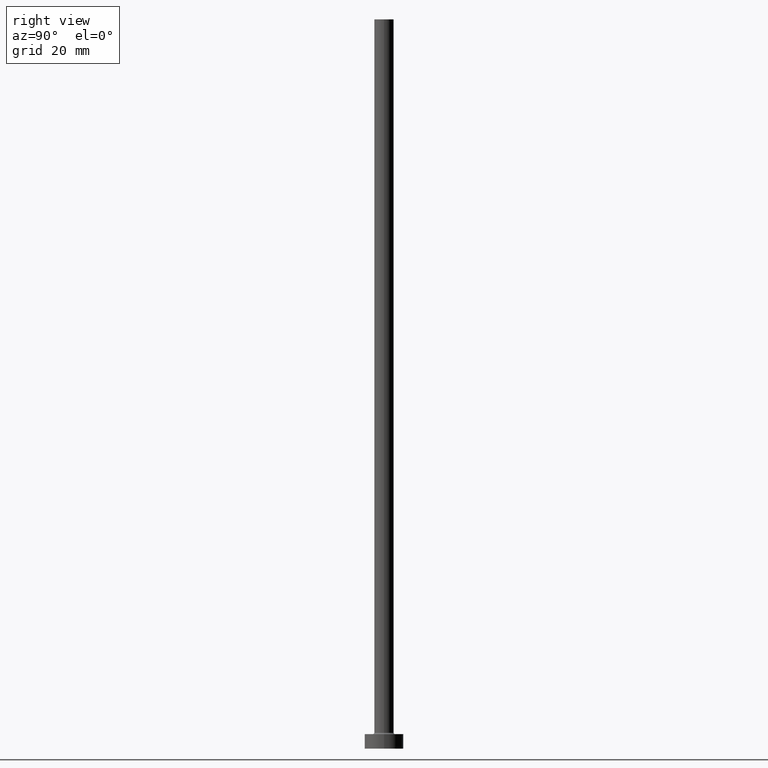
[diagram: clean part render]
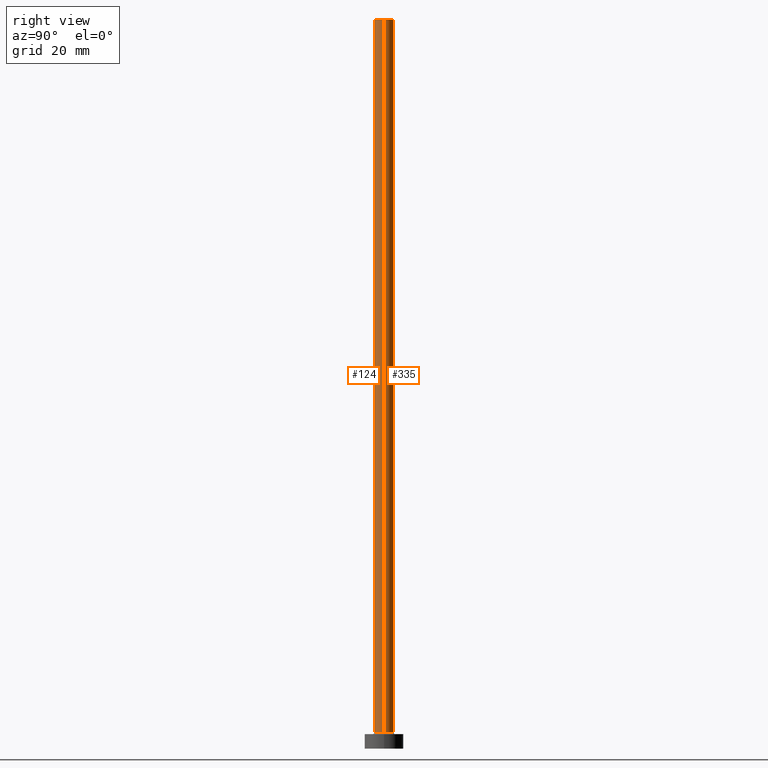
[diagram: same view with one multi-face feature highlighted, each face labeled with its STEP entity id]
A machine part, right view. The highlighted faces form ONE feature: a constant-radius fillet chain: 2 tangent blend faces with common blend radius 2 mm. The faces share edges in the B-rep.
Their STEP definitions:
[1] entity #335 (Cylinder):
#34 = VECTOR ( 'NONE', #448, 1000.000000000000000 ) ;
#41 = LINE ( 'NONE', #331, #34 ) ;
#42 = EDGE_CURVE ( 'NONE', #284, #338, #85, .T. ) ;
#58 = DIRECTION ( 'NONE',  ( -0.000000000000000000, -0.000000000000000000, -1.000000000000000000 ) ) ;
#66 = ORIENTED_EDGE ( 'NONE', *, *, #42, .T. ) ;
#80 = EDGE_CURVE ( 'NONE', #393, #391, #98, .T. ) ;
#85 = CIRCLE ( 'NONE', #162, 2.000000000000000000 ) ;
#86 = AXIS2_PLACEMENT_3D ( 'NONE', #181, #58, #258 ) ;
#88 = DIRECTION ( 'NONE',  ( 0.000000000000000000, 0.000000000000000000, 1.000000000000000000 ) ) ;
#98 = CIRCLE ( 'NONE', #294, 2.000000000000000000 ) ;
#99 = DIRECTION ( 'NONE',  ( 1.000000000000000000, 0.000000000000000000, 0.000000000000000000 ) ) ;
#139 = ORIENTED_EDGE ( 'NONE', *, *, #80, .F. ) ;
#161 = CARTESIAN_POINT ( 'NONE',  ( 0.000000000000000000, 0.000000000000000000, 150.0000000000000000 ) ) ;
#162 = AXIS2_PLACEMENT_3D ( 'NONE', #347, #88, #99 ) ;
#181 = CARTESIAN_POINT ( 'NONE',  ( 0.000000000000000000, 0.000000000000000000, 150.0000000000000000 ) ) ;
#205 = EDGE_CURVE ( 'NONE', #393, #284, #41, .T. ) ;
#236 = CARTESIAN_POINT ( 'NONE',  ( -2.000000000000000000, 0.000000000000000000, 150.0000000000000000 ) ) ;
#242 = LINE ( 'NONE', #415, #392 ) ;
#249 = ORIENTED_EDGE ( 'NONE', *, *, #405, .F. ) ;
#258 = DIRECTION ( 'NONE',  ( -1.000000000000000000, 0.000000000000000000, 0.000000000000000000 ) ) ;
#261 = FACE_OUTER_BOUND ( 'NONE', #361, .T. ) ;
#284 = VERTEX_POINT ( 'NONE', #388 ) ;
#292 = ORIENTED_EDGE ( 'NONE', *, *, #205, .T. ) ;
#294 = AXIS2_PLACEMENT_3D ( 'NONE', #161, #424, #379 ) ;
#331 = CARTESIAN_POINT ( 'NONE',  ( 2.000000000000000000, 2.449293598294706414E-16, 150.0000000000000000 ) ) ;
#335 = ADVANCED_FACE ( 'NONE', ( #261 ), #443, .T. ) ;
#338 = VERTEX_POINT ( 'NONE', #385 ) ;
#346 = DIRECTION ( 'NONE',  ( -0.000000000000000000, -0.000000000000000000, -1.000000000000000000 ) ) ;
#347 = CARTESIAN_POINT ( 'NONE',  ( 0.000000000000000000, 0.000000000000000000, 3.299999999999997158 ) ) ;
#361 = EDGE_LOOP ( 'NONE', ( #139, #292, #66, #249 ) ) ;
#379 = DIRECTION ( 'NONE',  ( 1.000000000000000000, 0.000000000000000000, 0.000000000000000000 ) ) ;
#385 = CARTESIAN_POINT ( 'NONE',  ( -2.000000000000000000, 0.000000000000000000, 3.299999999999997158 ) ) ;
#388 = CARTESIAN_POINT ( 'NONE',  ( 2.000000000000000000, 2.449293598294706414E-16, 3.299999999999997158 ) ) ;
#391 = VERTEX_POINT ( 'NONE', #236 ) ;
#392 = VECTOR ( 'NONE', #346, 1000.000000000000000 ) ;
#393 = VERTEX_POINT ( 'NONE', #445 ) ;
#405 = EDGE_CURVE ( 'NONE', #391, #338, #242, .T. ) ;
#415 = CARTESIAN_POINT ( 'NONE',  ( -2.000000000000000000, 0.000000000000000000, 150.0000000000000000 ) ) ;
#424 = DIRECTION ( 'NONE',  ( 0.000000000000000000, 0.000000000000000000, 1.000000000000000000 ) ) ;
#443 = CYLINDRICAL_SURFACE ( 'NONE', #86, 2.000000000000000000 ) ;
#445 = CARTESIAN_POINT ( 'NONE',  ( 2.000000000000000000, 2.449293598294706414E-16, 150.0000000000000000 ) ) ;
#448 = DIRECTION ( 'NONE',  ( -0.000000000000000000, -0.000000000000000000, -1.000000000000000000 ) ) ;
[2] entity #124 (Cylinder):
#5 = DIRECTION ( 'NONE',  ( 0.000000000000000000, 0.000000000000000000, 1.000000000000000000 ) ) ;
#6 = ORIENTED_EDGE ( 'NONE', *, *, #405, .T. ) ;
#34 = VECTOR ( 'NONE', #448, 1000.000000000000000 ) ;
#36 = ORIENTED_EDGE ( 'NONE', *, *, #205, .F. ) ;
#41 = LINE ( 'NONE', #331, #34 ) ;
#57 = DIRECTION ( 'NONE',  ( 1.000000000000000000, 0.000000000000000000, 0.000000000000000000 ) ) ;
#63 = EDGE_LOOP ( 'NONE', ( #36, #152, #6, #172 ) ) ;
#65 = DIRECTION ( 'NONE',  ( 1.000000000000000000, 0.000000000000000000, 0.000000000000000000 ) ) ;
#105 = AXIS2_PLACEMENT_3D ( 'NONE', #402, #416, #370 ) ;
#124 = ADVANCED_FACE ( 'NONE', ( #136 ), #283, .T. ) ;
#127 = AXIS2_PLACEMENT_3D ( 'NONE', #146, #5, #65 ) ;
#136 = FACE_OUTER_BOUND ( 'NONE', #63, .T. ) ;
#146 = CARTESIAN_POINT ( 'NONE',  ( 0.000000000000000000, 0.000000000000000000, 3.299999999999997158 ) ) ;
#151 = CIRCLE ( 'NONE', #256, 2.000000000000000000 ) ;
#152 = ORIENTED_EDGE ( 'NONE', *, *, #367, .F. ) ;
#172 = ORIENTED_EDGE ( 'NONE', *, *, #325, .T. ) ;
#205 = EDGE_CURVE ( 'NONE', #393, #284, #41, .T. ) ;
#236 = CARTESIAN_POINT ( 'NONE',  ( -2.000000000000000000, 0.000000000000000000, 150.0000000000000000 ) ) ;
#242 = LINE ( 'NONE', #415, #392 ) ;
#256 = AXIS2_PLACEMENT_3D ( 'NONE', #336, #291, #57 ) ;
#272 = CIRCLE ( 'NONE', #127, 2.000000000000000000 ) ;
#283 = CYLINDRICAL_SURFACE ( 'NONE', #105, 2.000000000000000000 ) ;
#284 = VERTEX_POINT ( 'NONE', #388 ) ;
#291 = DIRECTION ( 'NONE',  ( 0.000000000000000000, 0.000000000000000000, 1.000000000000000000 ) ) ;
#325 = EDGE_CURVE ( 'NONE', #338, #284, #272, .T. ) ;
#331 = CARTESIAN_POINT ( 'NONE',  ( 2.000000000000000000, 2.449293598294706414E-16, 150.0000000000000000 ) ) ;
#336 = CARTESIAN_POINT ( 'NONE',  ( 0.000000000000000000, 0.000000000000000000, 150.0000000000000000 ) ) ;
#338 = VERTEX_POINT ( 'NONE', #385 ) ;
#346 = DIRECTION ( 'NONE',  ( -0.000000000000000000, -0.000000000000000000, -1.000000000000000000 ) ) ;
#367 = EDGE_CURVE ( 'NONE', #391, #393, #151, .T. ) ;
#370 = DIRECTION ( 'NONE',  ( -1.000000000000000000, 0.000000000000000000, 0.000000000000000000 ) ) ;
#385 = CARTESIAN_POINT ( 'NONE',  ( -2.000000000000000000, 0.000000000000000000, 3.299999999999997158 ) ) ;
#388 = CARTESIAN_POINT ( 'NONE',  ( 2.000000000000000000, 2.449293598294706414E-16, 3.299999999999997158 ) ) ;
#391 = VERTEX_POINT ( 'NONE', #236 ) ;
#392 = VECTOR ( 'NONE', #346, 1000.000000000000000 ) ;
#393 = VERTEX_POINT ( 'NONE', #445 ) ;
#402 = CARTESIAN_POINT ( 'NONE',  ( 0.000000000000000000, 0.000000000000000000, 150.0000000000000000 ) ) ;
#405 = EDGE_CURVE ( 'NONE', #391, #338, #242, .T. ) ;
#415 = CARTESIAN_POINT ( 'NONE',  ( -2.000000000000000000, 0.000000000000000000, 150.0000000000000000 ) ) ;
#416 = DIRECTION ( 'NONE',  ( -0.000000000000000000, -0.000000000000000000, -1.000000000000000000 ) ) ;
#445 = CARTESIAN_POINT ( 'NONE',  ( 2.000000000000000000, 2.449293598294706414E-16, 150.0000000000000000 ) ) ;
#448 = DIRECTION ( 'NONE',  ( -0.000000000000000000, -0.000000000000000000, -1.000000000000000000 ) ) ;